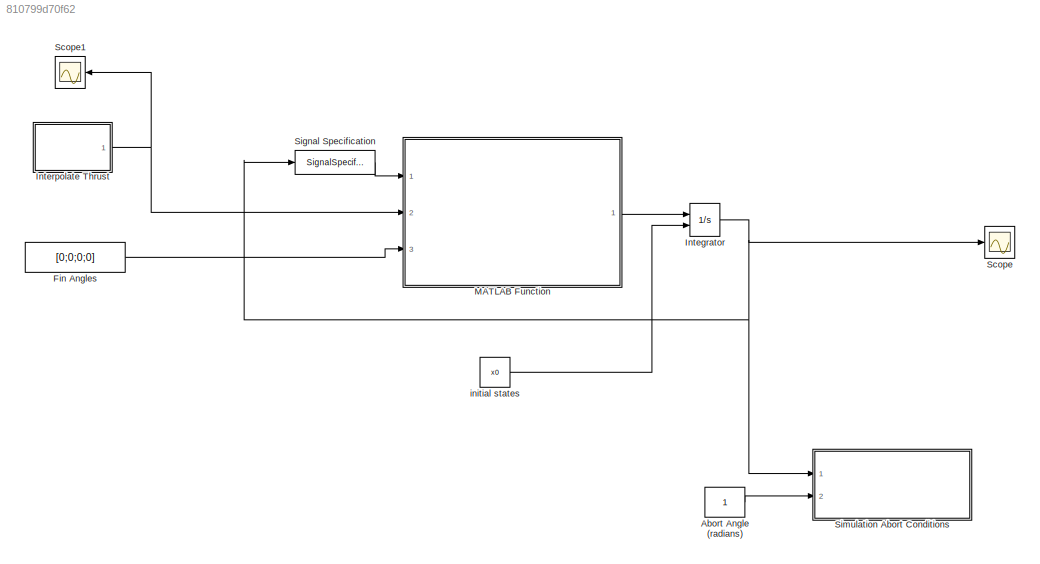
MODEL slx_810799d70f62
KIND model
CONFIG AbsTol = auto
CONFIG EnableMultiTasking = off
CONFIG FixedStep = auto
CONFIG MaxStep = auto
CONFIG MinStep = auto
CONFIG RelTol = 1e-3
CONFIG SampleTimeConstraint = Unconstrained
CONFIG Solver = VariableStepAuto
CONFIG SolverName = VariableStepAuto
CONFIG StartTime = 0.0
CONFIG StopTime = 10
BLOCK [Constant] Abort Angle (radians)
BLOCK [Constant] Fin Angles
  Value = [0;0;0;0]
BLOCK [Integrator] Integrator
  InitialCondition = [ 0            0            0            0            0          0.1    0.0049999     -2.5e-05    0.0049999      0.99998            0            0            0]
  InitialConditionSource = external
  Ports = [2, 1]
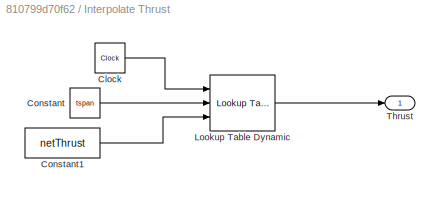
BLOCK [SubSystem] Interpolate Thrust
  Ports = [0, 1]
  RequestExecContextInheritance = off
BLOCK [Clock] Interpolate Thrust/Clock
BLOCK [Constant] Interpolate Thrust/Constant
  Value = tspan
  VectorParams1D = off
BLOCK [Constant] Interpolate Thrust/Constant1
  Value = netThrust
  VectorParams1D = off
BLOCK [Reference] Interpolate Thrust/Lookup Table Dynamic  REF=simulink/Lookup
Tables/Lookup
Table
Dynamic
  Ports = [3, 1]
  SourceBlock = simulink/Lookup\nTables/Lookup\nTable\nDynamic
  SourceProductBaseCode = SL
  SourceProductName = Simulink
  SourceType = Lookup Table Dynamic
BLOCK [Outport] Interpolate Thrust/Thrust
  IconDisplay = Port number
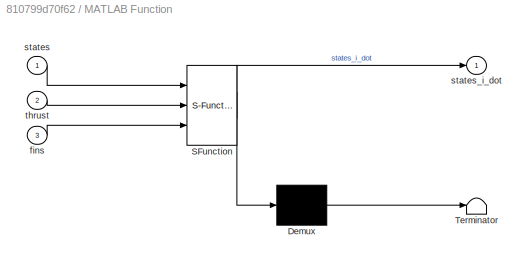
BLOCK [SubSystem] MATLAB Function
  ErrorFcn = Stateflow.Translate.translate
  PermitHierarchicalResolution = ExplicitOnly
  Ports = [3, 1]
  RequestExecContextInheritance = off
  SFBlockType = MATLAB Function
  TreatAsAtomicUnit = on
BLOCK [Demux] MATLAB Function/ Demux 
  Outputs = 1
  Ports = [1, 1]
BLOCK [S-Function] MATLAB Function/ SFunction 
  EnableBusSupport = on
  FunctionName = sf_sfun
  PortCounts = [3 2]
  Ports = [3, 2]
  SFcnIsStateOwnerBlock = off
  SFunctionDeploymentMode = off
  Tag = Stateflow S-Function EquationsOfMotion_simulink 2
BLOCK [Terminator] MATLAB Function/ Terminator 
BLOCK [Inport] MATLAB Function/fins
  IconDisplay = Port number
  Port = 3
BLOCK [Inport] MATLAB Function/states
  IconDisplay = Port number
BLOCK [Outport] MATLAB Function/states_i_dot
  IconDisplay = Port number
BLOCK [Inport] MATLAB Function/thrust
  IconDisplay = Port number
  Port = 2
BLOCK [Scope] Scope
  Floating = off
  NumInputPorts = 1
  Ports = [1]
  ScopeSpecificationString = Simulink.scopes.TimeScopeBlockCfg('CurrentConfiguration', extmgr.ConfigurationSet(extmgr.Configuration('Core','General UI',true),extmgr.Configuration('Core','Source UI',true),extmgr.Configuration('Sources','WiredSimulink',true,'DataLoggingVariableName','simOut','DataLogging',true,'DataLoggingSaveFormat','Array'),extmgr.Configuration('Visuals','Time Domain',true,'SerializedDisplays',{struct('MinYLi...<+1609ch>
BLOCK [Scope] Scope1
  Floating = off
  NumInputPorts = 1
  Ports = [1]
  ScopeSpecificationString = Simulink.scopes.TimeScopeBlockCfg('CurrentConfiguration', extmgr.ConfigurationSet(extmgr.Configuration('Core','General UI',true),extmgr.Configuration('Core','Source UI',true),extmgr.Configuration('Sources','WiredSimulink',true),extmgr.Configuration('Visuals','Time Domain',true,'SerializedDisplays',{struct('MinYLimReal','-182.44741','MaxYLimReal','1642.0267','YLabelReal','','MinYLimMag',' 0.00000',...<+1379ch>
BLOCK [SignalSpecification] Signal Specification
  Dimensions = [13 1]
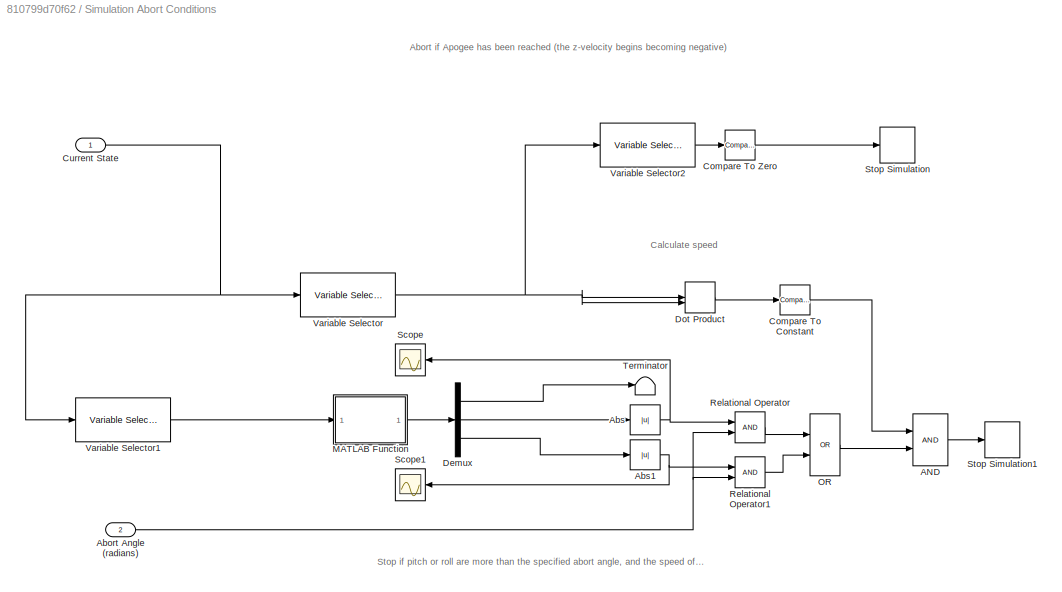
BLOCK [SubSystem] Simulation Abort Conditions
  Ports = [2]
  RequestExecContextInheritance = off
BLOCK [Logic] Simulation Abort Conditions/AND
  AllPortsSameDT = off
  IconShape = distinctive
  OutDataTypeStr = boolean
  Ports = [2, 1]
BLOCK [Inport] Simulation Abort Conditions/Abort Angle (radians)
  IconDisplay = Port number
  Port = 2
BLOCK [Abs] Simulation Abort Conditions/Abs
  SaturateOnIntegerOverflow = off
BLOCK [Abs] Simulation Abort Conditions/Abs1
  SaturateOnIntegerOverflow = off
BLOCK [Reference] Simulation Abort Conditions/Compare To Constant  REF=simulink/Logic and Bit
Operations/Compare
To Constant
  Ports = [1, 1]
  SourceBlock = simulink/Logic and Bit\nOperations/Compare\nTo Constant
  SourceProductBaseCode = SL
  SourceProductName = Simulink
  SourceType = Compare To Constant
BLOCK [Reference] Simulation Abort Conditions/Compare To Zero  REF=simulink/Logic and Bit
Operations/Compare
To Zero
  Ports = [1, 1]
  SourceBlock = simulink/Logic and Bit\nOperations/Compare\nTo Zero
  SourceProductBaseCode = SL
  SourceProductName = Simulink
  SourceType = Compare To Zero
BLOCK [Inport] Simulation Abort Conditions/Current State
  IconDisplay = Port number
BLOCK [Demux] Simulation Abort Conditions/Demux
  DisplayOption = bar
  Outputs = 3
  Ports = [1, 3]
BLOCK [DotProduct] Simulation Abort Conditions/Dot Product
  OutDataTypeStr = Inherit: Inherit via internal rule
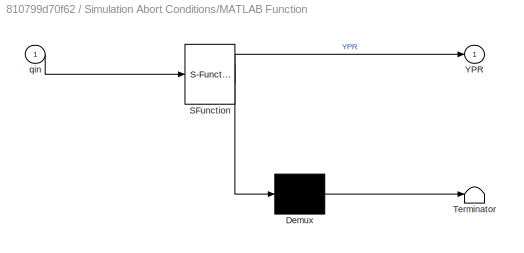
BLOCK [SubSystem] Simulation Abort Conditions/MATLAB Function
  ErrorFcn = Stateflow.Translate.translate
  PermitHierarchicalResolution = ExplicitOnly
  Ports = [1, 1]
  RequestExecContextInheritance = off
  SFBlockType = MATLAB Function
  TreatAsAtomicUnit = on
BLOCK [Demux] Simulation Abort Conditions/MATLAB Function/ Demux 
  Outputs = 1
  Ports = [1, 1]
BLOCK [S-Function] Simulation Abort Conditions/MATLAB Function/ SFunction 
  EnableBusSupport = on
  FunctionName = sf_sfun
  PortCounts = [1 2]
  Ports = [1, 2]
  SFcnIsStateOwnerBlock = off
  SFunctionDeploymentMode = off
  Tag = Stateflow S-Function EquationsOfMotion_simulink 1
BLOCK [Terminator] Simulation Abort Conditions/MATLAB Function/ Terminator 
BLOCK [Outport] Simulation Abort Conditions/MATLAB Function/YPR
  IconDisplay = Port number
BLOCK [Inport] Simulation Abort Conditions/MATLAB Function/qin
  IconDisplay = Port number
BLOCK [Logic] Simulation Abort Conditions/OR
  AllPortsSameDT = off
  IconShape = distinctive
  Operator = OR
  OutDataTypeStr = boolean
  Ports = [2, 1]
BLOCK [RelationalOperator] Simulation Abort Conditions/Relational Operator
  InputSameDT = off
  OutDataTypeStr = boolean
  Ports = [2, 1]
  RndMeth = Simplest
BLOCK [RelationalOperator] Simulation Abort Conditions/Relational Operator1
  InputSameDT = off
  OutDataTypeStr = boolean
  Ports = [2, 1]
  RndMeth = Simplest
BLOCK [Scope] Simulation Abort Conditions/Scope
  Floating = off
  NumInputPorts = 1
  Ports = [1]
  ScopeSpecificationString = Simulink.scopes.TimeScopeBlockCfg('CurrentConfiguration', extmgr.ConfigurationSet(extmgr.Configuration('Core','General UI',true),extmgr.Configuration('Core','Source UI',true),extmgr.Configuration('Sources','WiredSimulink',true,'DataLoggingVariableName','ScopeData1'),extmgr.Configuration('Visuals','Time Domain',true,'SerializedDisplays',{struct('MinYLimReal','-0.03383','MaxYLimReal','0.30444','YLab...<+1362ch>
BLOCK [Scope] Simulation Abort Conditions/Scope1
  Floating = off
  NumInputPorts = 1
  Ports = [1]
  ScopeSpecificationString = Simulink.scopes.TimeScopeBlockCfg('CurrentConfiguration', extmgr.ConfigurationSet(extmgr.Configuration('Core','General UI',true),extmgr.Configuration('Core','Source UI',true),extmgr.Configuration('Sources','WiredSimulink',true,'DataLoggingVariableName','ScopeData2'),extmgr.Configuration('Visuals','Time Domain',true,'SerializedDisplays',{struct('MinYLimReal','-0.00000000000000001','MaxYLimReal','0....<+1455ch>
BLOCK [Stop] Simulation Abort Conditions/Stop Simulation
BLOCK [Stop] Simulation Abort Conditions/Stop Simulation1
BLOCK [Terminator] Simulation Abort Conditions/Terminator
BLOCK [Reference] Simulation Abort Conditions/Variable Selector  REF=dspindex/Variable
Selector
  Ports = [1, 1]
  SourceBlock = dspindex/Variable\nSelector
  SourceProductBaseCode = DS
  SourceProductName = DSP System Toolbox
  SourceType = Variable Selector
BLOCK [Reference] Simulation Abort Conditions/Variable Selector1  REF=dspindex/Variable
Selector
  Ports = [1, 1]
  SourceBlock = dspindex/Variable\nSelector
  SourceProductBaseCode = DS
  SourceProductName = DSP System Toolbox
  SourceType = Variable Selector
BLOCK [Reference] Simulation Abort Conditions/Variable Selector2  REF=dspindex/Variable
Selector
  Ports = [1, 1]
  SourceBlock = dspindex/Variable\nSelector
  SourceProductBaseCode = DS
  SourceProductName = DSP System Toolbox
  SourceType = Variable Selector
BLOCK [Constant] initial states
  Value = x0
ANNOTATION Simulation Abort Conditions: Abort if Apogee has been reached (the z-velocity begins becoming negative)
ANNOTATION Simulation Abort Conditions: Calculate speed
ANNOTATION Simulation Abort Conditions: Stop if pitch or roll are more than the specified abort angle, and the speed of the rocket is more than 20 m/s
LINE Abort Angle (radians):1 -> Simulation Abort Conditions:2
LINE Fin Angles:1 -> MATLAB Function:3
NET Integrator:1 -> Scope:1, Signal Specification:1, Simulation Abort Conditions:1
LINE Interpolate Thrust/Clock:1 -> Interpolate Thrust/Lookup Table Dynamic:1
LINE Interpolate Thrust/Constant1:1 -> Interpolate Thrust/Lookup Table Dynamic:3
LINE Interpolate Thrust/Constant:1 -> Interpolate Thrust/Lookup Table Dynamic:2
LINE Interpolate Thrust/Lookup Table Dynamic:1 -> Interpolate Thrust/Thrust:1
NET Interpolate Thrust:1 -> MATLAB Function:2, Scope1:1
LINE MATLAB Function:1 -> Integrator:1
LINE Signal Specification:1 -> MATLAB Function:1
LINE Simulation Abort Conditions/AND:1 -> Simulation Abort Conditions/Stop Simulation1:1
NET Simulation Abort Conditions/Abort Angle (radians):1 -> Simulation Abort Conditions/Relational Operator1:2, Simulation Abort Conditions/Relational Operator:2
NET Simulation Abort Conditions/Abs1:1 -> Simulation Abort Conditions/Relational Operator1:1, Simulation Abort Conditions/Scope1:1
NET Simulation Abort Conditions/Abs:1 -> Simulation Abort Conditions/Relational Operator:1, Simulation Abort Conditions/Scope:1
LINE Simulation Abort Conditions/Compare To Constant:1 -> Simulation Abort Conditions/AND:1
LINE Simulation Abort Conditions/Compare To Zero:1 -> Simulation Abort Conditions/Stop Simulation:1
NET Simulation Abort Conditions/Current State:1 -> Simulation Abort Conditions/Variable Selector1:1, Simulation Abort Conditions/Variable Selector:1
LINE Simulation Abort Conditions/Demux:1 -> Simulation Abort Conditions/Terminator:1
LINE Simulation Abort Conditions/Demux:2 -> Simulation Abort Conditions/Abs:1
LINE Simulation Abort Conditions/Demux:3 -> Simulation Abort Conditions/Abs1:1
LINE Simulation Abort Conditions/Dot Product:1 -> Simulation Abort Conditions/Compare To Constant:1
LINE Simulation Abort Conditions/MATLAB Function:1 -> Simulation Abort Conditions/Demux:1
LINE Simulation Abort Conditions/OR:1 -> Simulation Abort Conditions/AND:2
LINE Simulation Abort Conditions/Relational Operator1:1 -> Simulation Abort Conditions/OR:2
LINE Simulation Abort Conditions/Relational Operator:1 -> Simulation Abort Conditions/OR:1
LINE Simulation Abort Conditions/Variable Selector1:1 -> Simulation Abort Conditions/MATLAB Function:1
LINE Simulation Abort Conditions/Variable Selector2:1 -> Simulation Abort Conditions/Compare To Zero:1
NET Simulation Abort Conditions/Variable Selector:1 -> Simulation Abort Conditions/Dot Product:1, Simulation Abort Conditions/Dot Product:2, Simulation Abort Conditions/Variable Selector2:1
LINE initial states:1 -> Integrator:2
note: NET lines group one-source signal fan-out (src -> all destinations, sorted); 1:1 wires keep LINE
CHART Simulation Abort Conditions/MATLAB Function states=1 transitions=1
  STATE_LABEL 'eML_blk_kernel()'
  STATE_LABEL 'SCRIPT:\nfunction YPR = quat2angle(qin)\nr1 = 0; r2 = 0; r3 = 0; YPR = zeros(3,1);\n        r1 = atan2(2.*(qin(2).*qin(3) + qin(1).*qin(4)),...\n                   qin(1).^2 + qin(2).^2 - qin(3).^2 - qin(4).^2);\n        r2 = asin(-2.*(qin(2).*qin(4) - qin(1).*qin(3)));\n        r3 = atan2( 2.*(qin(3).*qin(4) + qin(1).*qin(2)),...\n                    qin(1).^2 - qin(2).^2 - qin(3).^2 + qin(4).^2);\nYPR =...<+17ch>'
CHART MATLAB Function states=1 transitions=1
  STATE_LABEL 'eML_blk_kernel()'
  STATE_LABEL "SCRIPT:\nfunction states_i_dot = EquationsOfMotion(states,thrust,fins)\n   rocketStruct = load('rocket');\n%% Define the quaternions \n    q           = states(7:10);\n%% External Forces (inertial frame)\n% Aerodynamic forces due to rocket body\n    vel_i       = states(4:6);\n    vel_b       = quaternion_I_to_B(q,vel_i);\n    speed       = norm(vel_i);\n    alpha       = atan2(vel_b(1),vel_b(3));\n    beta ...<+3608ch>"
